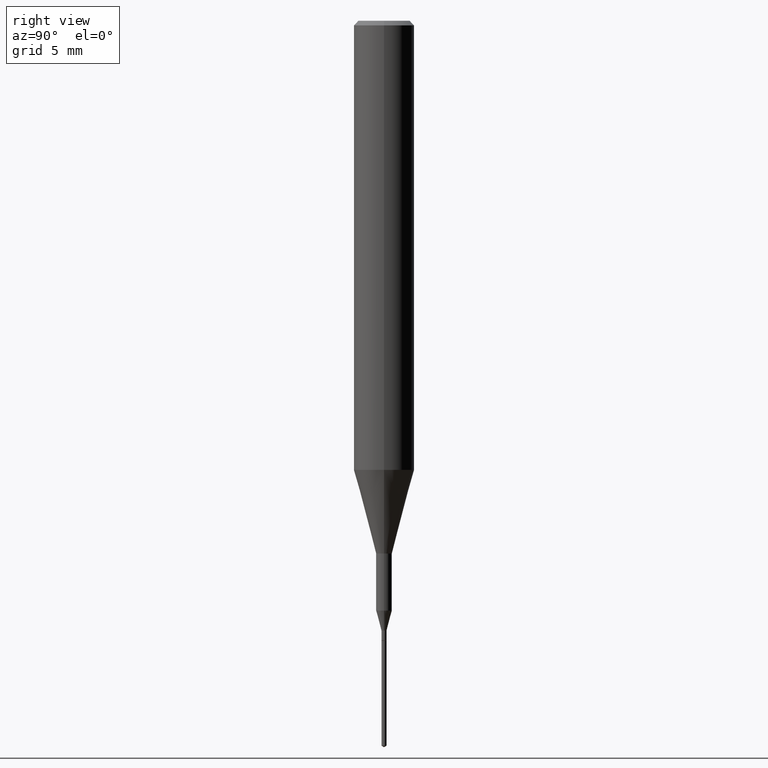
[diagram: clean part render]
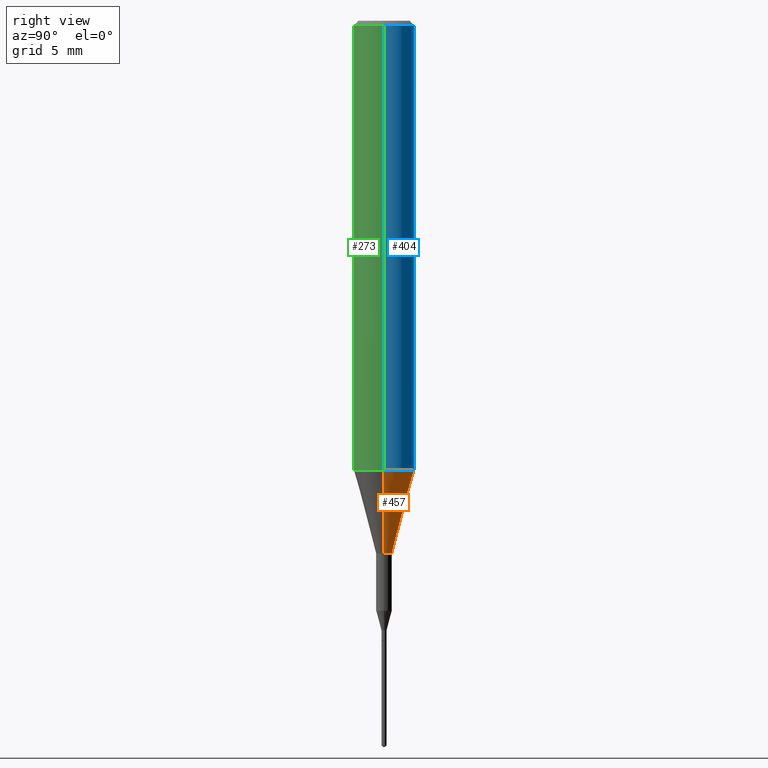
[diagram: same view with three faces highlighted in distinct colors, each labeled with its STEP entity id]
A machine part, right view with three faces highlighted in distinct colors.
Their STEP definitions:

[orange] entity #457 — the highlighted conical surface has half-angle 15 deg.
#6 = CARTESIAN_POINT ( 'NONE',  ( 0.01624999999999999709, -3.954102616239861778E-15, -1.100000000000000089 ) ) ;
#10 = ORIENTED_EDGE ( 'NONE', *, *, #64, .T. ) ;
#31 = CARTESIAN_POINT ( 'NONE',  ( -0.01624999999999999709, -3.931071922978147770E-15, -1.100000000000000089 ) ) ;
#37 = EDGE_CURVE ( 'NONE', #323, #99, #349, .T. ) ;
#43 = EDGE_LOOP ( 'NONE', ( #435, #10, #311, #467 ) ) ;
#54 = CARTESIAN_POINT ( 'NONE',  ( 2.267909797027042920E-29, -3.237974131778804114E-15, -0.9273926501499395458 ) ) ;
#64 = EDGE_CURVE ( 'NONE', #142, #493, #487, .T. ) ;
#95 = DIRECTION ( 'NONE',  ( -2.445468806185136597E-29, 3.491481338843145583E-15, 1.000000000000000000 ) ) ;
#99 = VERTEX_POINT ( 'NONE', #518 ) ;
#118 = AXIS2_PLACEMENT_3D ( 'NONE', #54, #95, #386 ) ;
#142 = VERTEX_POINT ( 'NONE', #31 ) ;
#154 = VECTOR ( 'NONE', #524, 39.37007874015748143 ) ;
#183 = AXIS2_PLACEMENT_3D ( 'NONE', #531, #442, #389 ) ;
#190 = DIRECTION ( 'NONE',  ( -2.445468806185136597E-29, 3.491481338843145583E-15, 1.000000000000000000 ) ) ;
#196 = DIRECTION ( 'NONE',  ( 0.2588190451025214611, 1.565188264969620982E-15, 0.9659258262890679791 ) ) ;
#235 = CIRCLE ( 'NONE', #295, 0.01624999999999999709 ) ;
#283 = DIRECTION ( 'NONE',  ( 1.000000000000000000, -6.982962677686259611E-15, 0.000000000000000000 ) ) ;
#295 = AXIS2_PLACEMENT_3D ( 'NONE', #427, #190, #283 ) ;
#311 = ORIENTED_EDGE ( 'NONE', *, *, #326, .F. ) ;
#323 = VERTEX_POINT ( 'NONE', #6 ) ;
#326 = EDGE_CURVE ( 'NONE', #99, #493, #508, .T. ) ;
#344 = VECTOR ( 'NONE', #196, 39.37007874015748143 ) ;
#349 = LINE ( 'NONE', #530, #344 ) ;
#364 = CONICAL_SURFACE ( 'NONE', #183, 0.06250000000000011102, 0.2617993877991501850 ) ;
#380 = EDGE_CURVE ( 'NONE', #323, #142, #235, .T. ) ;
#386 = DIRECTION ( 'NONE',  ( 1.000000000000000000, -6.982962677686265922E-15, 0.000000000000000000 ) ) ;
#389 = DIRECTION ( 'NONE',  ( 1.000000000000000000, -6.982962677686265922E-15, 0.000000000000000000 ) ) ;
#400 = FACE_OUTER_BOUND ( 'NONE', #43, .T. ) ;
#426 = CARTESIAN_POINT ( 'NONE',  ( -0.06250000000000011102, -2.793884921928740709E-15, -0.9273926501499395458 ) ) ;
#427 = CARTESIAN_POINT ( 'NONE',  ( 2.690015686803650369E-29, -3.840629472727460101E-15, -1.100000000000000089 ) ) ;
#435 = ORIENTED_EDGE ( 'NONE', *, *, #380, .T. ) ;
#442 = DIRECTION ( 'NONE',  ( -2.445468806185136597E-29, 3.491481338843145583E-15, 1.000000000000000000 ) ) ;
#457 = ADVANCED_FACE ( 'NONE', ( #400 ), #364, .T. ) ;
#467 = ORIENTED_EDGE ( 'NONE', *, *, #37, .F. ) ;
#486 = CARTESIAN_POINT ( 'NONE',  ( -0.06250000000000011102, -2.793884921928740709E-15, -0.9273926501499395458 ) ) ;
#487 = LINE ( 'NONE', #426, #154 ) ;
#493 = VERTEX_POINT ( 'NONE', #486 ) ;
#508 = CIRCLE ( 'NONE', #118, 0.06250000000000011102 ) ;
#518 = CARTESIAN_POINT ( 'NONE',  ( 0.06250000000000011102, -3.674409299134196572E-15, -0.9273926501499395458 ) ) ;
#524 = DIRECTION ( 'NONE',  ( -0.2588190451025214611, 5.211531920934550253E-15, 0.9659258262890679791 ) ) ;
#530 = CARTESIAN_POINT ( 'NONE',  ( 0.06250000000000011102, -3.674409299134196572E-15, -0.9273926501499395458 ) ) ;
#531 = CARTESIAN_POINT ( 'NONE',  ( 2.267909797027042920E-29, -3.237974131778804114E-15, -0.9273926501499395458 ) ) ;

[blue] entity #404 — the highlighted cylindrical surface (edge-blend (fillet) strip) has radius 1.5875 mm, axis along (-0, 0, 1).
#7 = AXIS2_PLACEMENT_3D ( 'NONE', #9, #560, #520 ) ;
#9 = CARTESIAN_POINT ( 'NONE',  ( 0.000000000000000000, 0.000000000000000000, 0.000000000000000000 ) ) ;
#12 = ORIENTED_EDGE ( 'NONE', *, *, #124, .F. ) ;
#54 = CARTESIAN_POINT ( 'NONE',  ( 2.267909797027042920E-29, -3.237974131778804114E-15, -0.9273926501499395458 ) ) ;
#55 = ORIENTED_EDGE ( 'NONE', *, *, #97, .F. ) ;
#70 = CARTESIAN_POINT ( 'NONE',  ( 0.06250000000000005551, -4.364351673553920638E-16, 3.047610484872462323E-30 ) ) ;
#95 = DIRECTION ( 'NONE',  ( -2.445468806185136597E-29, 3.491481338843145583E-15, 1.000000000000000000 ) ) ;
#97 = EDGE_CURVE ( 'NONE', #101, #378, #562, .T. ) ;
#99 = VERTEX_POINT ( 'NONE', #518 ) ;
#101 = VERTEX_POINT ( 'NONE', #527 ) ;
#103 = DIRECTION ( 'NONE',  ( -2.445468806185136597E-29, 3.491481338843145583E-15, 1.000000000000000000 ) ) ;
#118 = AXIS2_PLACEMENT_3D ( 'NONE', #54, #95, #386 ) ;
#124 = EDGE_CURVE ( 'NONE', #99, #101, #300, .T. ) ;
#138 = CARTESIAN_POINT ( 'NONE',  ( -0.06250000000000000000, -1.191264174815165938E-15, -0.009375000000000063838 ) ) ;
#148 = CARTESIAN_POINT ( 'NONE',  ( 2.292627005798581499E-31, -3.273263755165471417E-17, -0.009375000000000063838 ) ) ;
#153 = DIRECTION ( 'NONE',  ( 1.000000000000000000, -6.982962677686266711E-15, 0.000000000000000000 ) ) ;
#208 = LINE ( 'NONE', #505, #506 ) ;
#210 = EDGE_CURVE ( 'NONE', #493, #378, #208, .T. ) ;
#256 = DIRECTION ( 'NONE',  ( -2.445468806185136877E-29, 3.491481338843145188E-15, 1.000000000000000000 ) ) ;
#300 = LINE ( 'NONE', #70, #324 ) ;
#324 = VECTOR ( 'NONE', #256, 39.37007874015748143 ) ;
#326 = EDGE_CURVE ( 'NONE', #99, #493, #508, .T. ) ;
#331 = ORIENTED_EDGE ( 'NONE', *, *, #326, .T. ) ;
#339 = CYLINDRICAL_SURFACE ( 'NONE', #7, 0.06250000000000005551 ) ;
#369 = DIRECTION ( 'NONE',  ( -2.445468806185136877E-29, 3.491481338843145188E-15, 1.000000000000000000 ) ) ;
#378 = VERTEX_POINT ( 'NONE', #138 ) ;
#386 = DIRECTION ( 'NONE',  ( 1.000000000000000000, -6.982962677686265922E-15, 0.000000000000000000 ) ) ;
#404 = ADVANCED_FACE ( 'NONE', ( #420 ), #339, .T. ) ;
#420 = FACE_OUTER_BOUND ( 'NONE', #473, .T. ) ;
#473 = EDGE_LOOP ( 'NONE', ( #331, #514, #55, #12 ) ) ;
#486 = CARTESIAN_POINT ( 'NONE',  ( -0.06250000000000011102, -2.793884921928740709E-15, -0.9273926501499395458 ) ) ;
#493 = VERTEX_POINT ( 'NONE', #486 ) ;
#499 = AXIS2_PLACEMENT_3D ( 'NONE', #148, #103, #153 ) ;
#505 = CARTESIAN_POINT ( 'NONE',  ( -0.06250000000000005551, 4.440892098500630106E-16, -3.074334431409318916E-30 ) ) ;
#506 = VECTOR ( 'NONE', #369, 39.37007874015748143 ) ;
#508 = CIRCLE ( 'NONE', #118, 0.06250000000000011102 ) ;
#514 = ORIENTED_EDGE ( 'NONE', *, *, #210, .T. ) ;
#518 = CARTESIAN_POINT ( 'NONE',  ( 0.06250000000000011102, -3.674409299134196572E-15, -0.9273926501499395458 ) ) ;
#520 = DIRECTION ( 'NONE',  ( 1.000000000000000000, -6.982962677686266711E-15, 4.876176775795935232E-29 ) ) ;
#527 = CARTESIAN_POINT ( 'NONE',  ( 0.06250000000000000000, -4.691678049070464390E-16, -0.009375000000000063838 ) ) ;
#560 = DIRECTION ( 'NONE',  ( -2.445468806185136597E-29, 3.491481338843145583E-15, 1.000000000000000000 ) ) ;
#562 = CIRCLE ( 'NONE', #499, 0.06250000000000000000 ) ;

[green] entity #273 — the highlighted cylindrical surface (edge-blend (fillet) strip) has radius 1.5875 mm, axis along (-0, 0, 1).
#15 = CARTESIAN_POINT ( 'NONE',  ( 2.267909797027042920E-29, -3.237974131778804114E-15, -0.9273926501499395458 ) ) ;
#18 = DIRECTION ( 'NONE',  ( 1.000000000000000000, -6.982962677686266711E-15, 4.876176775795935232E-29 ) ) ;
#21 = DIRECTION ( 'NONE',  ( 1.000000000000000000, -6.982962677686265922E-15, 0.000000000000000000 ) ) ;
#46 = ORIENTED_EDGE ( 'NONE', *, *, #149, .F. ) ;
#70 = CARTESIAN_POINT ( 'NONE',  ( 0.06250000000000005551, -4.364351673553920638E-16, 3.047610484872462323E-30 ) ) ;
#71 = EDGE_CURVE ( 'NONE', #493, #99, #286, .T. ) ;
#99 = VERTEX_POINT ( 'NONE', #518 ) ;
#100 = CARTESIAN_POINT ( 'NONE',  ( 0.000000000000000000, 0.000000000000000000, 0.000000000000000000 ) ) ;
#101 = VERTEX_POINT ( 'NONE', #527 ) ;
#105 = DIRECTION ( 'NONE',  ( -2.445468806185136597E-29, 3.491481338843145583E-15, 1.000000000000000000 ) ) ;
#124 = EDGE_CURVE ( 'NONE', #99, #101, #300, .T. ) ;
#138 = CARTESIAN_POINT ( 'NONE',  ( -0.06250000000000000000, -1.191264174815165938E-15, -0.009375000000000063838 ) ) ;
#149 = EDGE_CURVE ( 'NONE', #378, #101, #579, .T. ) ;
#192 = AXIS2_PLACEMENT_3D ( 'NONE', #15, #105, #21 ) ;
#208 = LINE ( 'NONE', #505, #506 ) ;
#210 = EDGE_CURVE ( 'NONE', #493, #378, #208, .T. ) ;
#228 = FACE_OUTER_BOUND ( 'NONE', #469, .T. ) ;
#230 = ORIENTED_EDGE ( 'NONE', *, *, #71, .T. ) ;
#256 = DIRECTION ( 'NONE',  ( -2.445468806185136877E-29, 3.491481338843145188E-15, 1.000000000000000000 ) ) ;
#271 = ORIENTED_EDGE ( 'NONE', *, *, #210, .F. ) ;
#273 = ADVANCED_FACE ( 'NONE', ( #228 ), #353, .T. ) ;
#286 = CIRCLE ( 'NONE', #192, 0.06250000000000011102 ) ;
#300 = LINE ( 'NONE', #70, #324 ) ;
#324 = VECTOR ( 'NONE', #256, 39.37007874015748143 ) ;
#353 = CYLINDRICAL_SURFACE ( 'NONE', #470, 0.06250000000000005551 ) ;
#369 = DIRECTION ( 'NONE',  ( -2.445468806185136877E-29, 3.491481338843145188E-15, 1.000000000000000000 ) ) ;
#371 = AXIS2_PLACEMENT_3D ( 'NONE', #445, #540, #463 ) ;
#378 = VERTEX_POINT ( 'NONE', #138 ) ;
#445 = CARTESIAN_POINT ( 'NONE',  ( 2.292627005798581499E-31, -3.273263755165471417E-17, -0.009375000000000063838 ) ) ;
#463 = DIRECTION ( 'NONE',  ( 1.000000000000000000, -6.982962677686266711E-15, 0.000000000000000000 ) ) ;
#469 = EDGE_LOOP ( 'NONE', ( #271, #230, #510, #46 ) ) ;
#470 = AXIS2_PLACEMENT_3D ( 'NONE', #100, #517, #18 ) ;
#486 = CARTESIAN_POINT ( 'NONE',  ( -0.06250000000000011102, -2.793884921928740709E-15, -0.9273926501499395458 ) ) ;
#493 = VERTEX_POINT ( 'NONE', #486 ) ;
#505 = CARTESIAN_POINT ( 'NONE',  ( -0.06250000000000005551, 4.440892098500630106E-16, -3.074334431409318916E-30 ) ) ;
#506 = VECTOR ( 'NONE', #369, 39.37007874015748143 ) ;
#510 = ORIENTED_EDGE ( 'NONE', *, *, #124, .T. ) ;
#517 = DIRECTION ( 'NONE',  ( -2.445468806185136597E-29, 3.491481338843145583E-15, 1.000000000000000000 ) ) ;
#518 = CARTESIAN_POINT ( 'NONE',  ( 0.06250000000000011102, -3.674409299134196572E-15, -0.9273926501499395458 ) ) ;
#527 = CARTESIAN_POINT ( 'NONE',  ( 0.06250000000000000000, -4.691678049070464390E-16, -0.009375000000000063838 ) ) ;
#540 = DIRECTION ( 'NONE',  ( -2.445468806185136597E-29, 3.491481338843145583E-15, 1.000000000000000000 ) ) ;
#579 = CIRCLE ( 'NONE', #371, 0.06250000000000000000 ) ;